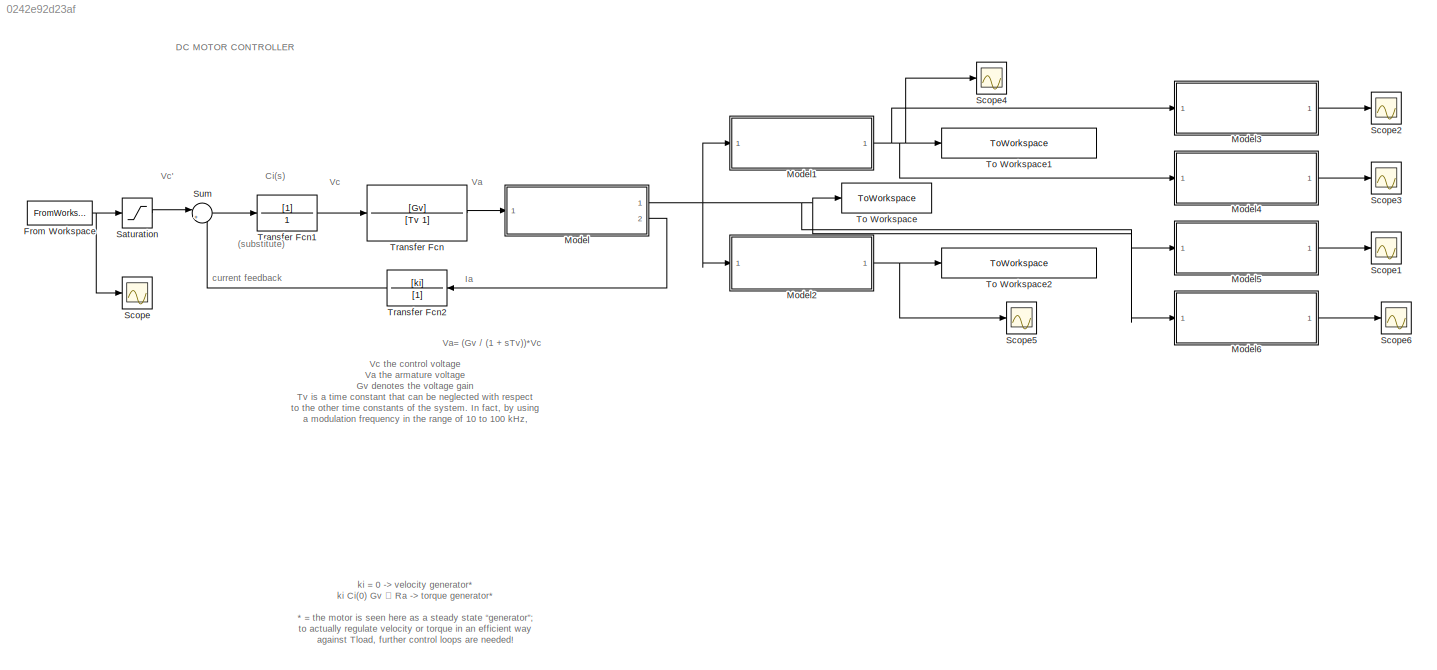
MODEL slx_0242e92d23af
KIND model
CONFIG AbsTol = auto
CONFIG EnableMultiTasking = off
CONFIG FixedStep = auto
CONFIG MaxStep = auto
CONFIG MinStep = auto
CONFIG RelTol = 1e-3
CONFIG SampleTimeConstraint = Unconstrained
CONFIG Solver = VariableStepAuto
CONFIG SolverName = VariableStepAuto
CONFIG StartTime = 0.0
CONFIG StopTime = 20.0
BLOCK [FromWorkspace] From Workspace
  SampleTime = 0.01
  VariableName = Vc
  ZeroCross = on
BLOCK [ModelReference] Model
  ModelNameDialog = DC_MOTOR.slx
  ModelReferenceVersion = 1.19
  Ports = [1, 2]
BLOCK [ModelReference] Model1
  ModelNameDialog = INCREMENTAL_ENCODER.slx
  ModelReferenceVersion = 1.21
  Ports = [1, 1]
BLOCK [ModelReference] Model2
  ModelNameDialog = ABSOLUTE_ENCODER.slx
  ModelReferenceVersion = 1.75
  Ports = [1, 1]
BLOCK [ModelReference] Model3
  ModelNameDialog = ONE_STEP_BDF.slx
  ModelReferenceVersion = 1.8
  Ports = [1, 1]
BLOCK [ModelReference] Model4
  ModelNameDialog = FOUR_STEP_BDS.slx
  ModelReferenceVersion = 1.3
  Ports = [1, 1]
BLOCK [ModelReference] Model5
  ModelNameDialog = TACHOMETER.slx
  ModelReferenceVersion = 1.9
  Ports = [1, 1]
BLOCK [ModelReference] Model6
  ModelNameDialog = ACCELEROMETER.slx
  ModelReferenceVersion = 1.4
  Ports = [1, 1]
BLOCK [Saturate] Saturation
  InputPortMap = u0
  LowerLimit = -1000
  Ports = [1, 1]
  UpperLimit = 1000
BLOCK [Scope] Scope
  Floating = off
  NumInputPorts = 1
  Ports = [1]
  ScopeSpecificationString = Simulink.scopes.TimeScopeBlockCfg('CurrentConfiguration', extmgr.ConfigurationSet(extmgr.Configuration('Core','General UI',true),extmgr.Configuration('Core','Source UI',true),extmgr.Configuration('Sources','WiredSimulink',true),extmgr.Configuration('Visuals','Time Domain',true,'SerializedDisplays',{struct('MinYLimReal','90.00000','MaxYLimReal','110.00000','YLabelReal','','MinYLimMag','90.00000','M...<+1344ch>
BLOCK [Scope] Scope1
  Floating = off
  NumInputPorts = 1
  Ports = [1]
  ScopeSpecificationString = Simulink.scopes.TimeScopeBlockCfg('CurrentConfiguration', extmgr.ConfigurationSet(extmgr.Configuration('Core','General UI',true),extmgr.Configuration('Core','Source UI',true),extmgr.Configuration('Sources','WiredSimulink',true,'DataLoggingVariableName','ScopeData1'),extmgr.Configuration('Visuals','Time Domain',true,'SerializedDisplays',{struct('MinYLimReal','-69.88927','MaxYLimReal','17.04651','YL...<+1413ch>
BLOCK [Scope] Scope2
  Floating = off
  NumInputPorts = 1
  Ports = [1]
  ScopeSpecificationString = Simulink.scopes.TimeScopeBlockCfg('CurrentConfiguration', extmgr.ConfigurationSet(extmgr.Configuration('Core','General UI',true),extmgr.Configuration('Core','Source UI',true),extmgr.Configuration('Sources','WiredSimulink',true,'DataLoggingVariableName','ScopeData1'),extmgr.Configuration('Visuals','Time Domain',true,'SerializedDisplays',{struct('MinYLimReal','-4.59','MaxYLimReal','37.71','YLabelRea...<+1450ch>
BLOCK [Scope] Scope3
  Floating = off
  NumInputPorts = 1
  Ports = [1]
  ScopeSpecificationString = Simulink.scopes.TimeScopeBlockCfg('CurrentConfiguration', extmgr.ConfigurationSet(extmgr.Configuration('Core','General UI',true),extmgr.Configuration('Core','Source UI',true),extmgr.Configuration('Sources','WiredSimulink',true,'DataLoggingVariableName','ScopeData2'),extmgr.Configuration('Visuals','Time Domain',true,'SerializedDisplays',{struct('MinYLimReal','-48.62062','MaxYLimReal','4.98562','YLa...<+1445ch>
BLOCK [Scope] Scope4
  Floating = off
  NumInputPorts = 1
  Ports = [1]
  ScopeSpecificationString = Simulink.scopes.TimeScopeBlockCfg('CurrentConfiguration', extmgr.ConfigurationSet(extmgr.Configuration('Core','General UI',true),extmgr.Configuration('Core','Source UI',true),extmgr.Configuration('Sources','WiredSimulink',true,'DataLoggingVariableName','ScopeData1'),extmgr.Configuration('Visuals','Time Domain',true,'SerializedDisplays',{struct('MinYLimReal','-697.59','MaxYLimReal','77.31','YLabelR...<+1458ch>
BLOCK [Scope] Scope5
  Floating = off
  NumInputPorts = 1
  Ports = [1]
  ScopeSpecificationString = Simulink.scopes.TimeScopeBlockCfg('CurrentConfiguration', extmgr.ConfigurationSet(extmgr.Configuration('Core','General UI',true),extmgr.Configuration('Core','Source UI',true),extmgr.Configuration('Sources','WiredSimulink',true,'DataLoggingVariableName','ScopeData3'),extmgr.Configuration('Visuals','Time Domain',true,'SerializedDisplays',{struct('MinYLimReal','-80672.44648','MaxYLimReal','139343.329...<+1499ch>
BLOCK [Scope] Scope6
  Floating = off
  NumInputPorts = 1
  Ports = [1]
  ScopeSpecificationString = Simulink.scopes.TimeScopeBlockCfg('CurrentConfiguration', extmgr.ConfigurationSet(extmgr.Configuration('Core','General UI',true),extmgr.Configuration('Core','Source UI',true),extmgr.Configuration('Sources','WiredSimulink',true,'DataLoggingVariableName','ScopeData1'),extmgr.Configuration('Visuals','Time Domain',true,'SerializedDisplays',{struct('MinYLimReal','-30.12353','MaxYLimReal','3.34706','YLa...<+1411ch>
BLOCK [Sum] Sum
  IconShape = round
  InputSameDT = off
  Inputs = |+-
  OutDataTypeStr = Inherit: Inherit via internal rule
  Ports = [2, 1]
  SaturateOnIntegerOverflow = off
BLOCK [ToWorkspace] To Workspace
  FixptAsFi = on
  MaxDataPoints = inf
  Ports = [1]
  SampleTime = -1
  SaveFormat = Timeseries
  VariableName = Theta
BLOCK [ToWorkspace] To Workspace1
  FixptAsFi = on
  MaxDataPoints = inf
  Ports = [1]
  SampleTime = -1
  SaveFormat = Timeseries
  VariableName = incremental_encoder
BLOCK [ToWorkspace] To Workspace2
  FixptAsFi = on
  MaxDataPoints = inf
  Ports = [1]
  SampleTime = -1
  SaveFormat = Timeseries
  VariableName = absolute_encoder
BLOCK [TransferFcn] Transfer Fcn
  ContinuousStateAttributes = ""
  Denominator = [Tv 1]
  Numerator = [Gv]
BLOCK [TransferFcn] Transfer Fcn1
  ContinuousStateAttributes = "
  Denominator = 1
BLOCK [TransferFcn] Transfer Fcn2
  ContinuousStateAttributes = "
  Denominator = [1]
  Numerator = [ki]
ANNOTATION (root): (substitute)
ANNOTATION (root): Vc the control voltage Va the armature voltage Gv denotes the voltage gain Tv is a time constant that can be neglected with respect to the other time constants of the system. In fact, by using a modulation frequency in the range of 10 to 100 kHz, the time constant of the amplifier is in the range of 10−5 to 10−4s. Ci(s) is the current regulator as well as an element with a nonlinear saturation cha...<+250ch>
ANNOTATION (root): DC MOTOR CONTROLLER
ANNOTATION (root): Va= (Gv / (1 + sTv))*Vc
ANNOTATION (root): Ci(s)
ANNOTATION (root): Ia
ANNOTATION (root): Va
ANNOTATION (root): Vc
ANNOTATION (root): Vc'
ANNOTATION (root): current feedback
ANNOTATION (root): ki = 0 -> velocity generator* ki Ci(0) Gv ≫ Ra -> torque generator* * = the motor is seen here as a steady state “generator”; to actually regulate velocity or torque in an efficient way against Tload, further control loops are needed!
NET From Workspace:1 -> Saturation:1, Scope:1
NET Model1:1 -> Model3:1, Model4:1, Scope4:1, To Workspace1:1
NET Model2:1 -> Scope5:1, To Workspace2:1
LINE Model3:1 -> Scope2:1
LINE Model4:1 -> Scope3:1
LINE Model5:1 -> Scope1:1
LINE Model6:1 -> Scope6:1
NET Model:1 -> Model1:1, Model2:1, Model5:1, Model6:1, To Workspace:1
LINE Model:2 -> Transfer Fcn2:1
LINE Saturation:1 -> Sum:1
LINE Sum:1 -> Transfer Fcn1:1
LINE Transfer Fcn1:1 -> Transfer Fcn:1
LINE Transfer Fcn2:1 -> Sum:2
LINE Transfer Fcn:1 -> Model:1
note: NET lines group one-source signal fan-out (src -> all destinations, sorted); 1:1 wires keep LINE
